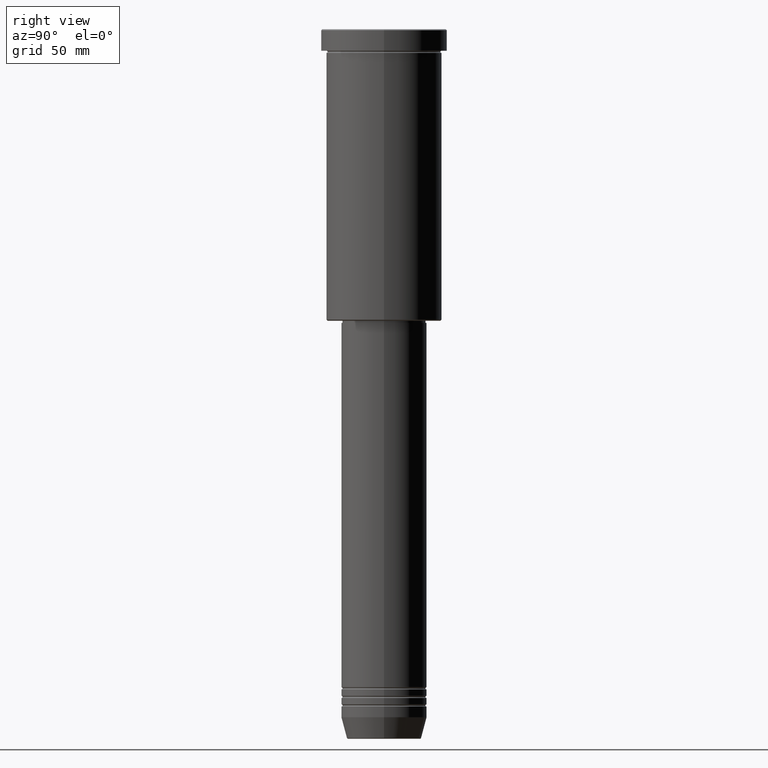
[diagram: clean part render]
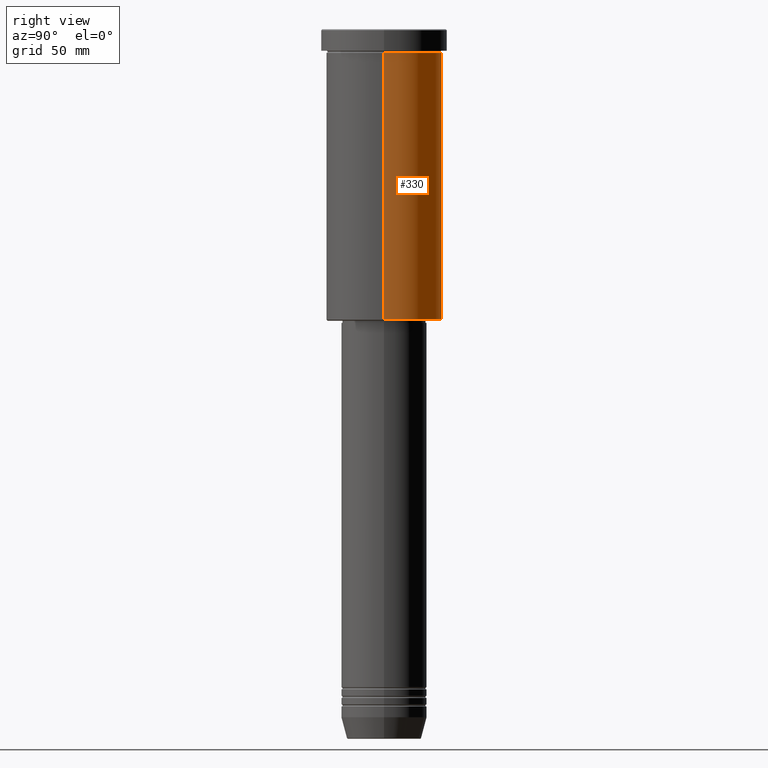
[diagram: same view with one face highlighted and labeled with its STEP entity id]
A machine part, right view. The second image highlights one B-rep face of the part: STEP entity #330.
In plain terms, the highlighted cylindrical surface (partial cylindrical patch) has radius 27 mm, axis along (-0, -0, 1).
Its self-contained STEP definition (entity closure, byte-faithful):
#63 = VERTEX_POINT ( 'NONE', #1073 ) ;
#83 = EDGE_CURVE ( 'NONE', #450, #63, #619, .T. ) ;
#118 = VECTOR ( 'NONE', #959, 1000.000000000000000 ) ;
#143 = CARTESIAN_POINT ( 'NONE',  ( 0.000000000000000000, 0.000000000000000000, -10.99999999999999289 ) ) ;
#189 = CARTESIAN_POINT ( 'NONE',  ( 27.00000000000000355, 0.000000000000000000, 0.000000000000000000 ) ) ;
#191 = DIRECTION ( 'NONE',  ( 1.000000000000000000, 0.000000000000000000, 0.000000000000000000 ) ) ;
#204 = ORIENTED_EDGE ( 'NONE', *, *, #83, .T. ) ;
#223 = ORIENTED_EDGE ( 'NONE', *, *, #1017, .F. ) ;
#330 = ADVANCED_FACE ( 'NONE', ( #485 ), #572, .T. ) ;
#378 = VERTEX_POINT ( 'NONE', #739 ) ;
#379 = DIRECTION ( 'NONE',  ( -1.000000000000000000, 0.000000000000000000, 0.000000000000000000 ) ) ;
#389 = EDGE_CURVE ( 'NONE', #63, #407, #915, .T. ) ;
#397 = CARTESIAN_POINT ( 'NONE',  ( 0.000000000000000000, 0.000000000000000000, 0.000000000000000000 ) ) ;
#407 = VERTEX_POINT ( 'NONE', #830 ) ;
#413 = EDGE_LOOP ( 'NONE', ( #204, #493, #677, #223 ) ) ;
#423 = DIRECTION ( 'NONE',  ( -0.000000000000000000, -0.000000000000000000, 1.000000000000000000 ) ) ;
#427 = VECTOR ( 'NONE', #638, 1000.000000000000000 ) ;
#445 = AXIS2_PLACEMENT_3D ( 'NONE', #143, #423, #688 ) ;
#450 = VERTEX_POINT ( 'NONE', #848 ) ;
#467 = CARTESIAN_POINT ( 'NONE',  ( 0.000000000000000000, 0.000000000000000000, -135.4999999999999716 ) ) ;
#485 = FACE_OUTER_BOUND ( 'NONE', #413, .T. ) ;
#493 = ORIENTED_EDGE ( 'NONE', *, *, #389, .T. ) ;
#572 = CYLINDRICAL_SURFACE ( 'NONE', #661, 27.00000000000000355 ) ;
#619 = CIRCLE ( 'NONE', #762, 27.00000000000000355 ) ;
#638 = DIRECTION ( 'NONE',  ( -0.000000000000000000, -0.000000000000000000, 1.000000000000000000 ) ) ;
#661 = AXIS2_PLACEMENT_3D ( 'NONE', #397, #734, #191 ) ;
#677 = ORIENTED_EDGE ( 'NONE', *, *, #794, .F. ) ;
#688 = DIRECTION ( 'NONE',  ( 1.000000000000000000, 0.000000000000000000, 0.000000000000000000 ) ) ;
#725 = LINE ( 'NONE', #189, #118 ) ;
#734 = DIRECTION ( 'NONE',  ( -0.000000000000000000, -0.000000000000000000, 1.000000000000000000 ) ) ;
#739 = CARTESIAN_POINT ( 'NONE',  ( 27.00000000000000355, 0.000000000000000000, -10.99999999999999289 ) ) ;
#762 = AXIS2_PLACEMENT_3D ( 'NONE', #467, #822, #379 ) ;
#794 = EDGE_CURVE ( 'NONE', #378, #407, #1080, .T. ) ;
#822 = DIRECTION ( 'NONE',  ( -0.000000000000000000, -0.000000000000000000, 1.000000000000000000 ) ) ;
#830 = CARTESIAN_POINT ( 'NONE',  ( -27.00000000000000355, 3.306546357697854128E-15, -10.99999999999999289 ) ) ;
#848 = CARTESIAN_POINT ( 'NONE',  ( 27.00000000000000355, 0.000000000000000000, -135.4999999999999716 ) ) ;
#915 = LINE ( 'NONE', #1182, #427 ) ;
#959 = DIRECTION ( 'NONE',  ( -0.000000000000000000, -0.000000000000000000, 1.000000000000000000 ) ) ;
#1017 = EDGE_CURVE ( 'NONE', #450, #378, #725, .T. ) ;
#1073 = CARTESIAN_POINT ( 'NONE',  ( -27.00000000000000355, 3.306546357697854128E-15, -135.4999999999999716 ) ) ;
#1080 = CIRCLE ( 'NONE', #445, 27.00000000000000355 ) ;
#1182 = CARTESIAN_POINT ( 'NONE',  ( -27.00000000000000355, 3.306546357697854128E-15, 0.000000000000000000 ) ) ;